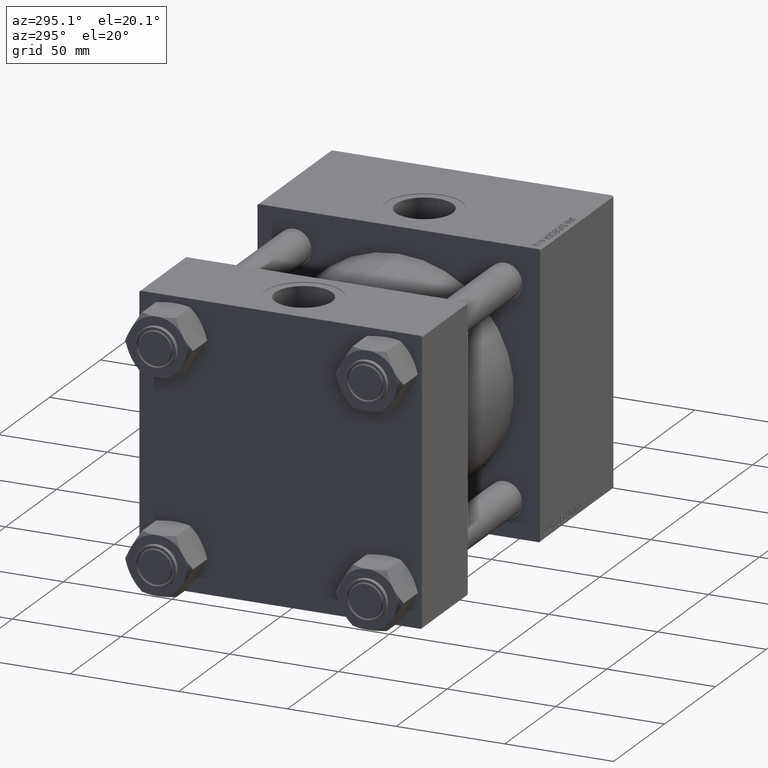
[diagram: clean part render]
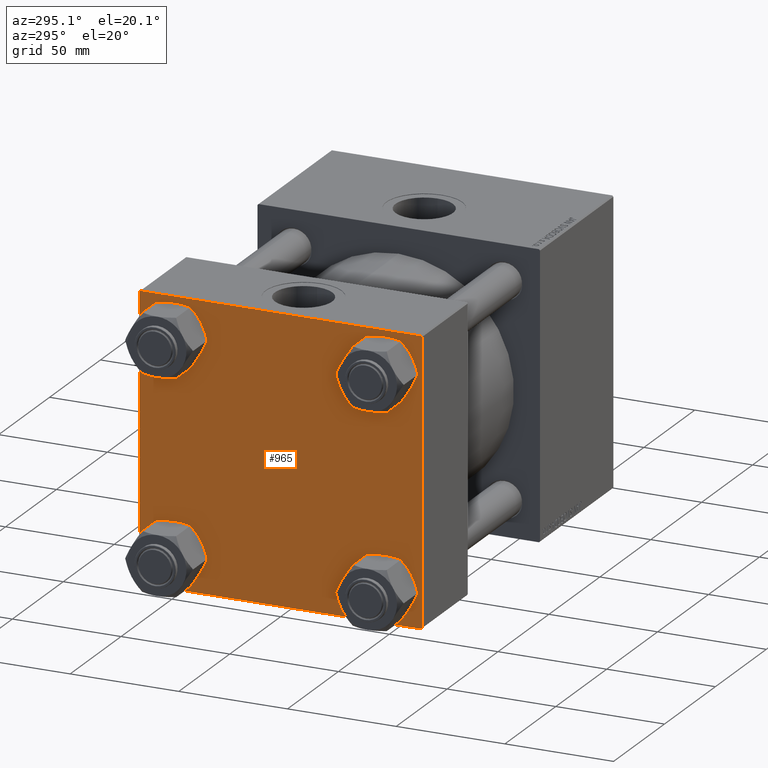
[diagram: same view with one face highlighted and labeled with its STEP entity id]
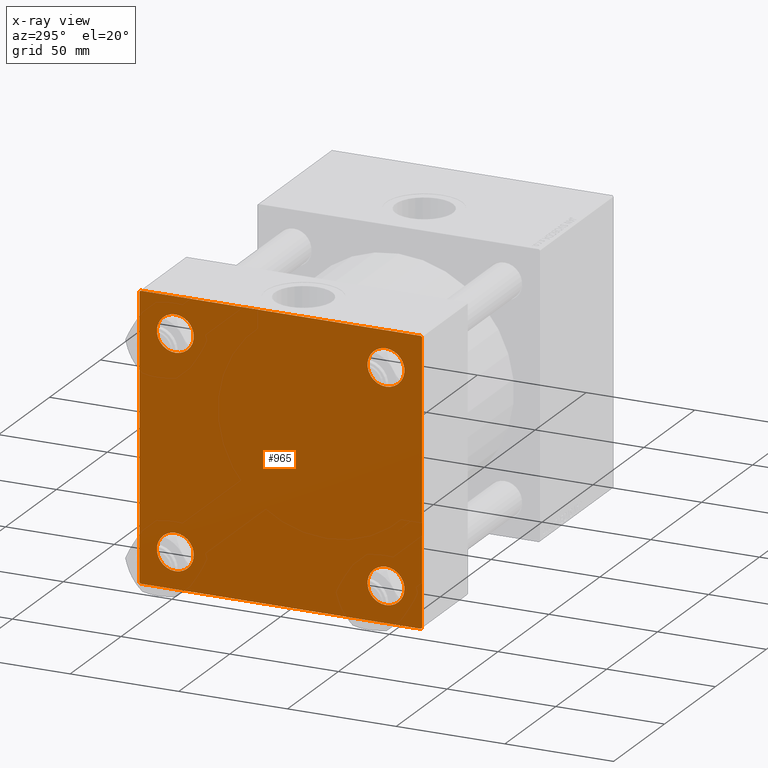
[diagram: x-ray of the same camera — body ghosted, the highlighted face saturated]
A machine part, auxiliary view. The second image highlights one B-rep face of the part: STEP entity #965.
The next image is the same camera in x-ray: the body ghosted, the highlighted face saturated — about 0% of this face is hidden behind the body in this view.
In plain terms, the highlighted planar face has unit normal (-1, 0, 0).
Its self-contained STEP definition (entity closure, byte-faithful):
#601 = EDGE_CURVE ( 'NONE', #4985, #48341, #48073, .T. ) ;
#906 = DIRECTION ( 'NONE',  ( 0.000000000000000000, 0.000000000000000000, 1.000000000000000000 ) ) ;
#965 = ADVANCED_FACE ( 'NONE', ( #49196, #22025, #37653, #37911, #18176 ), #33816, .T. ) ;
#1002 = DIRECTION ( 'NONE',  ( 0.000000000000000000, 0.7071067811865474617, -0.7071067811865474617 ) ) ;
#1334 = ORIENTED_EDGE ( 'NONE', *, *, #14407, .F. ) ;
#1511 = VERTEX_POINT ( 'NONE', #18311 ) ;
#2666 = DIRECTION ( 'NONE',  ( 0.000000000000000000, 0.000000000000000000, 1.000000000000000000 ) ) ;
#2708 = ORIENTED_EDGE ( 'NONE', *, *, #34415, .T. ) ;
#3034 = CARTESIAN_POINT ( 'NONE',  ( 0.000000000000000000, -48.44999999999998153, 48.45000000000000995 ) ) ;
#4946 = CARTESIAN_POINT ( 'NONE',  ( 0.000000000000000000, 65.00000000000000000, 65.00000000000001421 ) ) ;
#4985 = VERTEX_POINT ( 'NONE', #35908 ) ;
#5364 = VERTEX_POINT ( 'NONE', #25058 ) ;
#6101 = EDGE_CURVE ( 'NONE', #23511, #46938, #48712, .T. ) ;
#6369 = ORIENTED_EDGE ( 'NONE', *, *, #14837, .T. ) ;
#6516 = ORIENTED_EDGE ( 'NONE', *, *, #601, .T. ) ;
#6598 = EDGE_CURVE ( 'NONE', #46938, #4985, #24454, .T. ) ;
#6631 = DIRECTION ( 'NONE',  ( 0.000000000000000000, 0.000000000000000000, 1.000000000000000000 ) ) ;
#7335 = EDGE_CURVE ( 'NONE', #9265, #42034, #21323, .T. ) ;
#7998 = DIRECTION ( 'NONE',  ( 0.000000000000000000, -1.000000000000000000, -2.135044278125300850E-16 ) ) ;
#8124 = CARTESIAN_POINT ( 'NONE',  ( 0.000000000000000000, 48.44999999999999574, 48.44999999999999574 ) ) ;
#9265 = VERTEX_POINT ( 'NONE', #39910 ) ;
#10454 = AXIS2_PLACEMENT_3D ( 'NONE', #10481, #22278, #18945 ) ;
#10481 = CARTESIAN_POINT ( 'NONE',  ( 0.000000000000000000, 0.000000000000000000, 0.000000000000000000 ) ) ;
#11669 = VERTEX_POINT ( 'NONE', #16977 ) ;
#11886 = VECTOR ( 'NONE', #23305, 1000.000000000000000 ) ;
#12595 = VERTEX_POINT ( 'NONE', #38211 ) ;
#12808 = DIRECTION ( 'NONE',  ( 0.000000000000000000, 0.000000000000000000, 1.000000000000000000 ) ) ;
#13597 = DIRECTION ( 'NONE',  ( -0.000000000000000000, -0.7071067811865474617, -0.7071067811865474617 ) ) ;
#13852 = CARTESIAN_POINT ( 'NONE',  ( 0.000000000000000000, 64.74999999999997158, -64.74999999999997158 ) ) ;
#14407 = EDGE_CURVE ( 'NONE', #50033, #48341, #34122, .T. ) ;
#14495 = ORIENTED_EDGE ( 'NONE', *, *, #7335, .T. ) ;
#14746 = VECTOR ( 'NONE', #13597, 1000.000000000000114 ) ;
#14837 = EDGE_CURVE ( 'NONE', #28413, #29528, #23925, .T. ) ;
#14889 = AXIS2_PLACEMENT_3D ( 'NONE', #22201, #50153, #45027 ) ;
#15713 = LINE ( 'NONE', #43142, #35736 ) ;
#16279 = LINE ( 'NONE', #4946, #43810 ) ;
#16869 = EDGE_LOOP ( 'NONE', ( #30743, #40179, #49300, #6516, #1334, #21829, #41863, #2708 ) ) ;
#16912 = DIRECTION ( 'NONE',  ( 1.000000000000000000, -0.000000000000000000, 0.000000000000000000 ) ) ;
#16977 = CARTESIAN_POINT ( 'NONE',  ( 0.000000000000000000, -64.49999999999997158, 64.99999999999998579 ) ) ;
#17506 = EDGE_LOOP ( 'NONE', ( #30126, #14495 ) ) ;
#17655 = AXIS2_PLACEMENT_3D ( 'NONE', #3034, #27151, #6631 ) ;
#17693 = AXIS2_PLACEMENT_3D ( 'NONE', #35043, #27088, #28096 ) ;
#18176 = FACE_OUTER_BOUND ( 'NONE', #16869, .T. ) ;
#18286 = CIRCLE ( 'NONE', #34650, 8.500000000000007105 ) ;
#18311 = CARTESIAN_POINT ( 'NONE',  ( 0.000000000000000000, -48.44999999999998153, 39.95000000000000284 ) ) ;
#18945 = DIRECTION ( 'NONE',  ( -0.000000000000000000, 0.000000000000000000, 1.000000000000000000 ) ) ;
#19000 = VERTEX_POINT ( 'NONE', #40734 ) ;
#19298 = AXIS2_PLACEMENT_3D ( 'NONE', #24355, #16912, #12808 ) ;
#20064 = EDGE_CURVE ( 'NONE', #29528, #28413, #35561, .T. ) ;
#20608 = CARTESIAN_POINT ( 'NONE',  ( 0.000000000000000000, 65.00000000000000000, -64.99999999999998579 ) ) ;
#20916 = CIRCLE ( 'NONE', #45477, 8.500000000000007105 ) ;
#21323 = CIRCLE ( 'NONE', #27878, 8.500000000000007105 ) ;
#21829 = ORIENTED_EDGE ( 'NONE', *, *, #44331, .T. ) ;
#21912 = DIRECTION ( 'NONE',  ( 0.000000000000000000, 0.000000000000000000, 1.000000000000000000 ) ) ;
#22025 = FACE_BOUND ( 'NONE', #38637, .T. ) ;
#22201 = CARTESIAN_POINT ( 'NONE',  ( 0.000000000000000000, -48.44999999999998153, -48.45000000000000995 ) ) ;
#22278 = DIRECTION ( 'NONE',  ( -1.000000000000000000, 0.000000000000000000, -0.000000000000000000 ) ) ;
#22800 = CARTESIAN_POINT ( 'NONE',  ( 0.000000000000000000, 48.44999999999999574, -39.94999999999998863 ) ) ;
#22851 = ORIENTED_EDGE ( 'NONE', *, *, #40265, .T. ) ;
#23305 = DIRECTION ( 'NONE',  ( -0.000000000000000000, 0.7071067811865672237, 0.7071067811865279218 ) ) ;
#23511 = VERTEX_POINT ( 'NONE', #49010 ) ;
#23686 = CARTESIAN_POINT ( 'NONE',  ( 0.000000000000000000, -65.00000000000000000, -64.49999999999995737 ) ) ;
#23761 = EDGE_CURVE ( 'NONE', #1511, #33018, #20916, .T. ) ;
#23925 = CIRCLE ( 'NONE', #14889, 8.500000000000007105 ) ;
#24029 = VERTEX_POINT ( 'NONE', #22800 ) ;
#24114 = EDGE_CURVE ( 'NONE', #33018, #1511, #34870, .T. ) ;
#24355 = CARTESIAN_POINT ( 'NONE',  ( 0.000000000000000000, 48.44999999999999574, -48.44999999999999574 ) ) ;
#24454 = LINE ( 'NONE', #20608, #46665 ) ;
#24486 = CARTESIAN_POINT ( 'NONE',  ( 0.000000000000000000, -64.74999999999997158, -64.74999999999997158 ) ) ;
#24615 = ORIENTED_EDGE ( 'NONE', *, *, #24114, .T. ) ;
#24726 = CARTESIAN_POINT ( 'NONE',  ( 0.000000000000000000, 64.49999999999997158, -64.99999999999998579 ) ) ;
#25058 = CARTESIAN_POINT ( 'NONE',  ( 0.000000000000000000, 65.00000000000000000, 64.49999999999998579 ) ) ;
#25156 = EDGE_LOOP ( 'NONE', ( #22851, #32885 ) ) ;
#26446 = DIRECTION ( 'NONE',  ( 0.000000000000000000, 0.000000000000000000, 1.000000000000000000 ) ) ;
#26760 = EDGE_CURVE ( 'NONE', #19000, #11669, #15713, .T. ) ;
#26829 = VECTOR ( 'NONE', #31913, 1000.000000000000114 ) ;
#27088 = DIRECTION ( 'NONE',  ( 1.000000000000000000, -0.000000000000000000, 0.000000000000000000 ) ) ;
#27151 = DIRECTION ( 'NONE',  ( 1.000000000000000000, -0.000000000000000000, 0.000000000000000000 ) ) ;
#27878 = AXIS2_PLACEMENT_3D ( 'NONE', #8124, #35562, #906 ) ;
#27994 = EDGE_LOOP ( 'NONE', ( #24615, #36592 ) ) ;
#28096 = DIRECTION ( 'NONE',  ( 0.000000000000000000, 0.000000000000000000, 1.000000000000000000 ) ) ;
#28146 = EDGE_CURVE ( 'NONE', #12595, #24029, #50408, .T. ) ;
#28413 = VERTEX_POINT ( 'NONE', #39120 ) ;
#28952 = ORIENTED_EDGE ( 'NONE', *, *, #20064, .T. ) ;
#29031 = DIRECTION ( 'NONE',  ( 0.000000000000000000, -1.000000000000000000, -2.135044278125300850E-16 ) ) ;
#29082 = CARTESIAN_POINT ( 'NONE',  ( 0.000000000000000000, -48.44999999999998153, -48.45000000000000995 ) ) ;
#29528 = VERTEX_POINT ( 'NONE', #30853 ) ;
#29970 = CIRCLE ( 'NONE', #17693, 8.500000000000007105 ) ;
#30126 = ORIENTED_EDGE ( 'NONE', *, *, #48225, .T. ) ;
#30159 = CARTESIAN_POINT ( 'NONE',  ( 0.000000000000000000, -65.00000000000000000, 64.49999999999998579 ) ) ;
#30743 = ORIENTED_EDGE ( 'NONE', *, *, #44759, .T. ) ;
#30853 = CARTESIAN_POINT ( 'NONE',  ( 0.000000000000000000, -48.44999999999998153, -39.95000000000000284 ) ) ;
#31913 = DIRECTION ( 'NONE',  ( 0.000000000000000000, -0.7071067811865474617, 0.7071067811865474617 ) ) ;
#32785 = CARTESIAN_POINT ( 'NONE',  ( 0.000000000000000000, 64.74999999999998579, 64.74999999999998579 ) ) ;
#32885 = ORIENTED_EDGE ( 'NONE', *, *, #28146, .T. ) ;
#33018 = VERTEX_POINT ( 'NONE', #40178 ) ;
#33816 = PLANE ( 'NONE',  #10454 ) ;
#34122 = LINE ( 'NONE', #34375, #46921 ) ;
#34375 = CARTESIAN_POINT ( 'NONE',  ( 0.000000000000000000, -65.00000000000000000, 64.99999999999998579 ) ) ;
#34415 = EDGE_CURVE ( 'NONE', #19000, #5364, #40495, .T. ) ;
#34650 = AXIS2_PLACEMENT_3D ( 'NONE', #48603, #49364, #2666 ) ;
#34870 = CIRCLE ( 'NONE', #17655, 8.500000000000007105 ) ;
#35043 = CARTESIAN_POINT ( 'NONE',  ( 0.000000000000000000, 48.44999999999999574, 48.44999999999999574 ) ) ;
#35561 = CIRCLE ( 'NONE', #48653, 8.500000000000007105 ) ;
#35562 = DIRECTION ( 'NONE',  ( 1.000000000000000000, -0.000000000000000000, 0.000000000000000000 ) ) ;
#35736 = VECTOR ( 'NONE', #7998, 1000.000000000000000 ) ;
#35908 = CARTESIAN_POINT ( 'NONE',  ( 0.000000000000000000, -64.49999999999994316, -65.00000000000001421 ) ) ;
#35994 = DIRECTION ( 'NONE',  ( 0.000000000000000000, 0.000000000000000000, -1.000000000000000000 ) ) ;
#36216 = VECTOR ( 'NONE', #1002, 1000.000000000000114 ) ;
#36592 = ORIENTED_EDGE ( 'NONE', *, *, #23761, .T. ) ;
#37653 = FACE_BOUND ( 'NONE', #25156, .T. ) ;
#37911 = FACE_BOUND ( 'NONE', #17506, .T. ) ;
#37961 = DIRECTION ( 'NONE',  ( 0.000000000000000000, 0.000000000000000000, -1.000000000000000000 ) ) ;
#38211 = CARTESIAN_POINT ( 'NONE',  ( 0.000000000000000000, 48.44999999999999574, -56.95000000000000284 ) ) ;
#38637 = EDGE_LOOP ( 'NONE', ( #28952, #6369 ) ) ;
#39008 = DIRECTION ( 'NONE',  ( 1.000000000000000000, -0.000000000000000000, 0.000000000000000000 ) ) ;
#39120 = CARTESIAN_POINT ( 'NONE',  ( 0.000000000000000000, -48.44999999999998153, -56.95000000000001705 ) ) ;
#39910 = CARTESIAN_POINT ( 'NONE',  ( 0.000000000000000000, 48.44999999999999574, 39.94999999999998863 ) ) ;
#40178 = CARTESIAN_POINT ( 'NONE',  ( 0.000000000000000000, -48.44999999999998153, 56.95000000000001705 ) ) ;
#40179 = ORIENTED_EDGE ( 'NONE', *, *, #6101, .T. ) ;
#40265 = EDGE_CURVE ( 'NONE', #24029, #12595, #18286, .T. ) ;
#40495 = LINE ( 'NONE', #32785, #36216 ) ;
#40734 = CARTESIAN_POINT ( 'NONE',  ( 0.000000000000000000, 64.49999999999997158, 65.00000000000001421 ) ) ;
#41863 = ORIENTED_EDGE ( 'NONE', *, *, #26760, .F. ) ;
#42034 = VERTEX_POINT ( 'NONE', #49761 ) ;
#42283 = CARTESIAN_POINT ( 'NONE',  ( -0.000000000000000000, -64.74999999999819522, 64.75000000000179057 ) ) ;
#42861 = CARTESIAN_POINT ( 'NONE',  ( 0.000000000000000000, -48.44999999999998153, 48.45000000000000995 ) ) ;
#43142 = CARTESIAN_POINT ( 'NONE',  ( 0.000000000000000000, 65.00000000000000000, 65.00000000000001421 ) ) ;
#43810 = VECTOR ( 'NONE', #35994, 1000.000000000000000 ) ;
#44331 = EDGE_CURVE ( 'NONE', #50033, #11669, #49968, .T. ) ;
#44759 = EDGE_CURVE ( 'NONE', #5364, #23511, #16279, .T. ) ;
#45027 = DIRECTION ( 'NONE',  ( 0.000000000000000000, 0.000000000000000000, 1.000000000000000000 ) ) ;
#45477 = AXIS2_PLACEMENT_3D ( 'NONE', #42861, #39008, #26446 ) ;
#45500 = DIRECTION ( 'NONE',  ( 1.000000000000000000, -0.000000000000000000, 0.000000000000000000 ) ) ;
#46665 = VECTOR ( 'NONE', #29031, 1000.000000000000000 ) ;
#46921 = VECTOR ( 'NONE', #37961, 1000.000000000000000 ) ;
#46938 = VERTEX_POINT ( 'NONE', #24726 ) ;
#48073 = LINE ( 'NONE', #24486, #26829 ) ;
#48225 = EDGE_CURVE ( 'NONE', #42034, #9265, #29970, .T. ) ;
#48341 = VERTEX_POINT ( 'NONE', #23686 ) ;
#48603 = CARTESIAN_POINT ( 'NONE',  ( 0.000000000000000000, 48.44999999999999574, -48.44999999999999574 ) ) ;
#48653 = AXIS2_PLACEMENT_3D ( 'NONE', #29082, #45500, #21912 ) ;
#48712 = LINE ( 'NONE', #13852, #14746 ) ;
#49010 = CARTESIAN_POINT ( 'NONE',  ( 0.000000000000000000, 65.00000000000000000, -64.49999999999995737 ) ) ;
#49196 = FACE_BOUND ( 'NONE', #27994, .T. ) ;
#49300 = ORIENTED_EDGE ( 'NONE', *, *, #6598, .T. ) ;
#49364 = DIRECTION ( 'NONE',  ( 1.000000000000000000, -0.000000000000000000, 0.000000000000000000 ) ) ;
#49761 = CARTESIAN_POINT ( 'NONE',  ( 0.000000000000000000, 48.44999999999999574, 56.95000000000000284 ) ) ;
#49968 = LINE ( 'NONE', #42283, #11886 ) ;
#50033 = VERTEX_POINT ( 'NONE', #30159 ) ;
#50153 = DIRECTION ( 'NONE',  ( 1.000000000000000000, -0.000000000000000000, 0.000000000000000000 ) ) ;
#50408 = CIRCLE ( 'NONE', #19298, 8.500000000000007105 ) ;